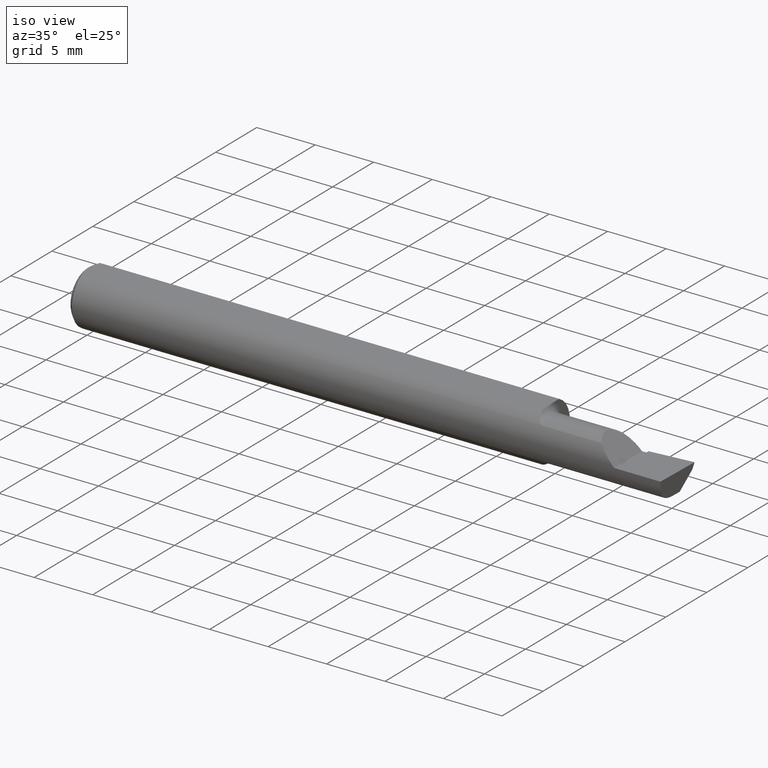
[diagram: clean part render]
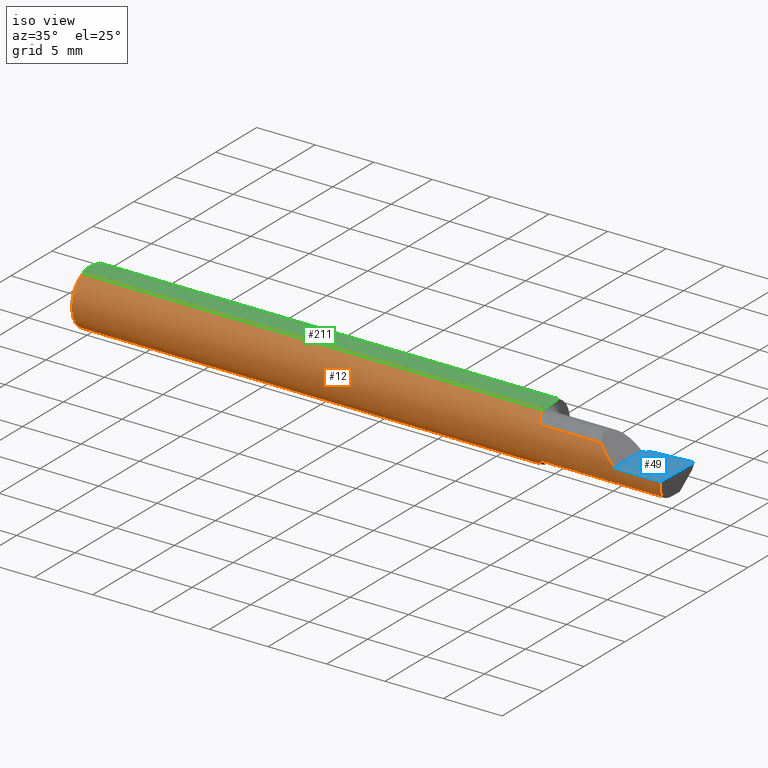
[diagram: same view with three faces highlighted in distinct colors, each labeled with its STEP entity id]
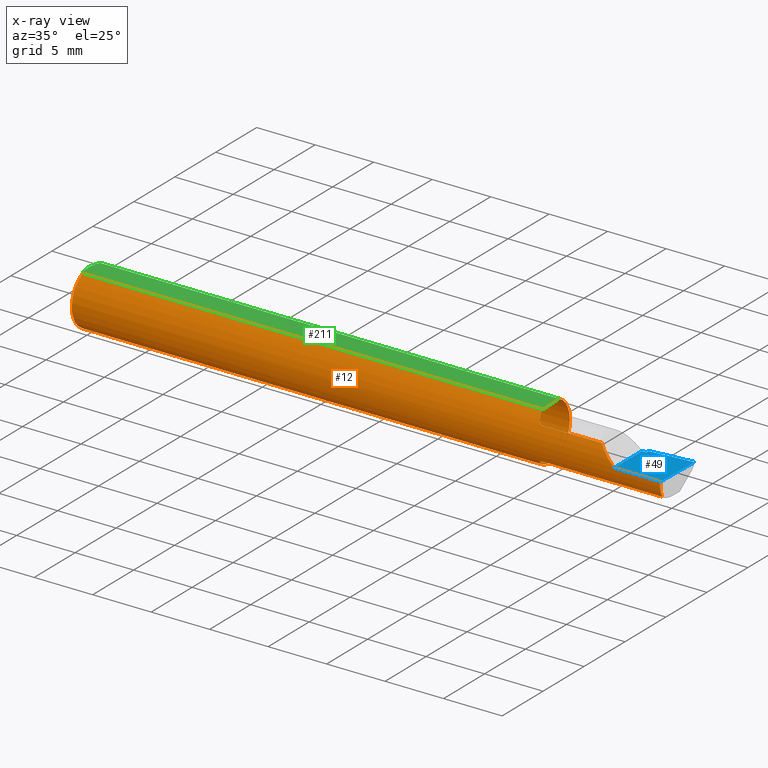
[diagram: x-ray of the same camera — body ghosted, the three highlighted faces saturated]
A machine part, iso view with three faces highlighted in distinct colors.
The next image is the same camera in x-ray (body ghosted, the three faces saturated) — at least one of them is partly hidden behind the body in this view.
Their STEP definitions:

[orange] entity #12 — the highlighted cylindrical surface (edge-blend (fillet) strip) has radius 2.3774 mm, axis along (-1, -0, -0).
#4 = VERTEX_POINT ( 'NONE', #325 ) ;
#5 = LINE ( 'NONE', #428, #269 ) ;
#6 = DIRECTION ( 'NONE',  ( -1.000000000000000000, -0.000000000000000000, -0.000000000000000000 ) ) ;
#12 = ADVANCED_FACE ( 'NONE', ( #523 ), #560, .T. ) ;
#26 = CARTESIAN_POINT ( 'NONE',  ( 1.577524991500365292, -0.07354719313698328265, 0.05791404302443246138 ) ) ;
#27 = VECTOR ( 'NONE', #6, 39.37007874015748143 ) ;
#30 = CARTESIAN_POINT ( 'NONE',  ( 1.572372878085588122, -0.06813570069660565554, -0.06426486695182659359 ) ) ;
#32 = EDGE_CURVE ( 'NONE', #598, #380, #322, .T. ) ;
#36 = VERTEX_POINT ( 'NONE', #202 ) ;
#42 = CARTESIAN_POINT ( 'NONE',  ( 1.995862624392068074, -0.09360000000000009979, -6.605666309584466665E-17 ) ) ;
#47 = CARTESIAN_POINT ( 'NONE',  ( 1.785481776797905207, -0.07608366013071832246, 0.05451822320209408906 ) ) ;
#52 = CARTESIAN_POINT ( 'NONE',  ( 1.560000000000000053, 0.000000000000000000, 0.000000000000000000 ) ) ;
#54 = ORIENTED_EDGE ( 'NONE', *, *, #414, .F. ) ;
#65 = EDGE_CURVE ( 'NONE', #401, #500, #538, .T. ) ;
#71 = CARTESIAN_POINT ( 'NONE',  ( 1.584999999999999964, -0.07608366013071794776, 0.05451822320209439438 ) ) ;
#75 = CIRCLE ( 'NONE', #168, 0.09360000000000001652 ) ;
#76 = CARTESIAN_POINT ( 'NONE',  ( 1.572718485147075684, -0.06880529263944749896, 0.06356579742164542024 ) ) ;
#79 = CARTESIAN_POINT ( 'NONE',  ( 0.000000000000000000, 0.000000000000000000, 0.000000000000000000 ) ) ;
#82 = ORIENTED_EDGE ( 'NONE', *, *, #583, .F. ) ;
#84 = VECTOR ( 'NONE', #590, 39.37007874015748143 ) ;
#92 = LINE ( 'NONE', #244, #84 ) ;
#93 = EDGE_CURVE ( 'NONE', #102, #619, #448, .T. ) ;
#96 = DIRECTION ( 'NONE',  ( 0.000000000000000000, 1.000000000000000000, 0.000000000000000000 ) ) ;
#102 = VERTEX_POINT ( 'NONE', #429 ) ;
#103 = CIRCLE ( 'NONE', #240, 0.09360000000000001652 ) ;
#106 = CARTESIAN_POINT ( 'NONE',  ( 5.659797890829555466E-31, -0.09359999999999998876, 1.030335658007946046E-15 ) ) ;
#110 = EDGE_LOOP ( 'NONE', ( #114, #122, #600, #82, #554, #420, #605, #245, #468, #288, #54, #411 ) ) ;
#114 = ORIENTED_EDGE ( 'NONE', *, *, #32, .F. ) ;
#119 = EDGE_CURVE ( 'NONE', #602, #612, #92, .T. ) ;
#122 = ORIENTED_EDGE ( 'NONE', *, *, #310, .T. ) ;
#129 = CARTESIAN_POINT ( 'NONE',  ( 1.566007506249286640, -0.05524264031795306923, -0.07589747771031254975 ) ) ;
#132 = DIRECTION ( 'NONE',  ( 0.000000000000000000, 0.000000000000000000, 1.000000000000000000 ) ) ;
#138 = DIRECTION ( 'NONE',  ( -1.000000000000000000, -0.000000000000000000, -0.000000000000000000 ) ) ;
#139 = CARTESIAN_POINT ( 'NONE',  ( 1.989625015145392917, -0.07608366013071821143, -0.05451822320209420702 ) ) ;
#165 = DIRECTION ( 'NONE',  ( -1.000000000000000000, -0.000000000000000000, -0.000000000000000000 ) ) ;
#168 = AXIS2_PLACEMENT_3D ( 'NONE', #284, #138, #581 ) ;
#175 = DIRECTION ( 'NONE',  ( -1.000000000000000000, -0.000000000000000000, -0.000000000000000000 ) ) ;
#178 = DIRECTION ( 'NONE',  ( -1.000000000000000000, -4.268512490100411279E-18, -0.000000000000000000 ) ) ;
#182 = CARTESIAN_POINT ( 'NONE',  ( 0.01499999999999999771, 0.000000000000000000, -0.09360000000000001652 ) ) ;
#183 = DIRECTION ( 'NONE',  ( -1.000000000000000000, -0.000000000000000000, -0.000000000000000000 ) ) ;
#196 = CARTESIAN_POINT ( 'NONE',  ( 1.991292915001084296, -0.08756847698997995144, -0.03849042825095487508 ) ) ;
#202 = CARTESIAN_POINT ( 'NONE',  ( 1.560000000000000053, -0.007864705882352510113, -0.09326900021649256467 ) ) ;
#219 = CARTESIAN_POINT ( 'NONE',  ( 1.581360941731893899, -0.07557034852506690215, -0.05524018594043181990 ) ) ;
#222 = CARTESIAN_POINT ( 'NONE',  ( 1.568052623108272314, -0.06089616178095298704, -0.07140423527607867027 ) ) ;
#224 = CARTESIAN_POINT ( 'NONE',  ( 1.580753778368558793, -0.07537148234687023052, 0.05551905660761868172 ) ) ;
#238 = DIRECTION ( 'NONE',  ( 1.000000000000000000, 4.268512490100411279E-18, 0.000000000000000000 ) ) ;
#240 = AXIS2_PLACEMENT_3D ( 'NONE', #348, #175, #513 ) ;
#241 = CARTESIAN_POINT ( 'NONE',  ( 1.995862624392068074, -0.09360000000000009979, -6.605666309584466665E-17 ) ) ;
#244 = CARTESIAN_POINT ( 'NONE',  ( 0.000000000000000000, 0.04209513035969837669, 0.08360000000000000764 ) ) ;
#245 = ORIENTED_EDGE ( 'NONE', *, *, #349, .F. ) ;
#266 = CARTESIAN_POINT ( 'NONE',  ( 1.561750924354898817, -0.03635445752162090594, -0.08656092162675024793 ) ) ;
#269 = VECTOR ( 'NONE', #238, 39.37007874015748143 ) ;
#270 = CARTESIAN_POINT ( 'NONE',  ( 1.989625015145392917, -0.07608366013071821143, -0.05451822320209420702 ) ) ;
#271 = VERTEX_POINT ( 'NONE', #396 ) ;
#284 = CARTESIAN_POINT ( 'NONE',  ( 0.01499999999999999771, 0.000000000000000000, 0.000000000000000000 ) ) ;
#288 = ORIENTED_EDGE ( 'NONE', *, *, #520, .F. ) ;
#290 = CARTESIAN_POINT ( 'NONE',  ( 0.01500000000000000291, -0.04209513035969835587, 0.08360000000000000764 ) ) ;
#310 = EDGE_CURVE ( 'NONE', #598, #102, #359, .T. ) ;
#313 = CARTESIAN_POINT ( 'NONE',  ( 1.719999999999999973, -0.07608366013071821143, -0.05451822320209420702 ) ) ;
#315 = CARTESIAN_POINT ( 'NONE',  ( 1.562861144841092953, -0.04209513036041401951, 0.08360000000000000764 ) ) ;
#320 = CARTESIAN_POINT ( 'NONE',  ( 1.566341906786436811, -0.05682123740528498973, 0.07483672126184987006 ) ) ;
#322 =( BOUNDED_CURVE ( )  B_SPLINE_CURVE ( 3, ( #42, #436, #196, #139 ),
 .UNSPECIFIED., .F., .T. ) 
 B_SPLINE_CURVE_WITH_KNOTS ( ( 4, 4 ),
 ( 4.922438424664829171, 5.544189768309971456 ),
 .UNSPECIFIED. ) 
 CURVE ( )  GEOMETRIC_REPRESENTATION_ITEM ( )  RATIONAL_B_SPLINE_CURVE ( ( 1.000000000000000000, 0.9680440490283178656, 0.9680440490283178656, 1.000000000000000000 ) ) 
 REPRESENTATION_ITEM ( '' )  );
#324 = CARTESIAN_POINT ( 'NONE',  ( 1.560327566746672501, -0.02246933888146956590, -0.09115683487700426690 ) ) ;
#325 = CARTESIAN_POINT ( 'NONE',  ( 1.584999999999999964, -0.07608366013071794776, 0.05451822320209439438 ) ) ;
#329 = VECTOR ( 'NONE', #165, 39.37007874015748143 ) ;
#342 = DIRECTION ( 'NONE',  ( 1.000000000000000000, 4.268512490100411279E-18, 0.000000000000000000 ) ) ;
#348 = CARTESIAN_POINT ( 'NONE',  ( 0.01499999999999999771, 0.000000000000000000, 0.000000000000000000 ) ) ;
#349 = EDGE_CURVE ( 'NONE', #602, #433, #103, .T. ) ;
#358 = EDGE_CURVE ( 'NONE', #380, #271, #370, .T. ) ;
#359 = LINE ( 'NONE', #106, #329 ) ;
#367 = CARTESIAN_POINT ( 'NONE',  ( 1.562861144841092953, -0.04209513036041401951, 0.08360000000000000764 ) ) ;
#370 = LINE ( 'NONE', #313, #584 ) ;
#380 = VERTEX_POINT ( 'NONE', #270 ) ;
#383 = CARTESIAN_POINT ( 'NONE',  ( 1.840000000000000080, -0.09360000000000005815, 1.959434878635762025E-17 ) ) ;
#389 = EDGE_CURVE ( 'NONE', #401, #4, #518, .T. ) ;
#395 = CARTESIAN_POINT ( 'NONE',  ( 1.785481776797905207, -0.07608366013071832246, 0.05451822320209408906 ) ) ;
#396 = CARTESIAN_POINT ( 'NONE',  ( 1.584999999999999964, -0.07608366013071804490, -0.05451822320209432499 ) ) ;
#401 = VERTEX_POINT ( 'NONE', #367 ) ;
#411 = ORIENTED_EDGE ( 'NONE', *, *, #358, .F. ) ;
#413 = AXIS2_PLACEMENT_3D ( 'NONE', #79, #183, #132 ) ;
#414 = EDGE_CURVE ( 'NONE', #271, #36, #453, .T. ) ;
#415 = CARTESIAN_POINT ( 'NONE',  ( 1.559999999999995612, -0.01523829271462590410, -0.09264723852076078847 ) ) ;
#420 = ORIENTED_EDGE ( 'NONE', *, *, #65, .T. ) ;
#421 = CARTESIAN_POINT ( 'NONE',  ( 1.584999999999999964, -0.07608366013071804490, -0.05451822320209432499 ) ) ;
#424 = CARTESIAN_POINT ( 'NONE',  ( 1.583103322019917103, -0.07608366013071797551, -0.05451822320209449846 ) ) ;
#428 = CARTESIAN_POINT ( 'NONE',  ( 1.719999999999999973, -0.07608366013071821143, 0.05451822320209420702 ) ) ;
#429 = CARTESIAN_POINT ( 'NONE',  ( 1.840000000000000080, -0.09360000000000005815, 1.959434878635762025E-17 ) ) ;
#432 = CARTESIAN_POINT ( 'NONE',  ( 0.000000000000000000, -0.04209513035969835587, 0.08360000000000000764 ) ) ;
#433 = VERTEX_POINT ( 'NONE', #182 ) ;
#434 = CARTESIAN_POINT ( 'NONE',  ( 0.01499999999999999771, 0.04209513035969837669, 0.08360000000000000764 ) ) ;
#436 = CARTESIAN_POINT ( 'NONE',  ( 1.993440754331651910, -0.09359999999999998876, -0.01971778966533910271 ) ) ;
#441 = AXIS2_PLACEMENT_3D ( 'NONE', #52, #342, #96 ) ;
#448 =( BOUNDED_CURVE ( )  B_SPLINE_CURVE ( 3, ( #383, #575, #582, #47 ),
 .UNSPECIFIED., .F., .T. ) 
 B_SPLINE_CURVE_WITH_KNOTS ( ( 4, 4 ),
 ( 4.712388980384689674, 5.334140324029830182 ),
 .UNSPECIFIED. ) 
 CURVE ( )  GEOMETRIC_REPRESENTATION_ITEM ( )  RATIONAL_B_SPLINE_CURVE ( ( 1.000000000000000000, 0.9680440490283178656, 0.9680440490283178656, 1.000000000000000000 ) ) 
 REPRESENTATION_ITEM ( '' )  );
#453 = B_SPLINE_CURVE_WITH_KNOTS ( 'NONE', 3,
 ( #421, #424, #219, #604, #477, #616, #30, #222, #129, #611, #266, #324, #415, #606 ),
 .UNSPECIFIED., .F., .F.,
 ( 4, 2, 2, 2, 2, 2, 4 ),
 ( 1.959461805732903391E-07, 0.0001418114856513866067, 0.0002834270251221998886, 0.0005666581040638388666, 0.001133120261947115955, 0.001699582419830393152, 0.002266044577713670349 ),
 .UNSPECIFIED. ) ;
#460 = CARTESIAN_POINT ( 'NONE',  ( 1.576209588651319882, -0.07242362088648852947, 0.05932313091832396024 ) ) ;
#468 = ORIENTED_EDGE ( 'NONE', *, *, #119, .T. ) ;
#477 = CARTESIAN_POINT ( 'NONE',  ( 1.577249994923977328, -0.07326991650738465256, -0.05826485454810950010 ) ) ;
#484 = CIRCLE ( 'NONE', #441, 0.09360000000000001652 ) ;
#500 = VERTEX_POINT ( 'NONE', #290 ) ;
#511 = CARTESIAN_POINT ( 'NONE',  ( 1.570942860874689373, -0.06599234460544585457, 0.06650584501266768034 ) ) ;
#513 = DIRECTION ( 'NONE',  ( 0.000000000000000000, 0.000000000000000000, 1.000000000000000000 ) ) ;
#517 = CARTESIAN_POINT ( 'NONE',  ( 1.582761054724242777, -0.07608366013204299894, 0.05451822320024558854 ) ) ;
#518 = B_SPLINE_CURVE_WITH_KNOTS ( 'NONE', 3,
 ( #315, #565, #320, #511, #76, #460, #26, #224, #517, #71 ),
 .UNSPECIFIED., .F., .F.,
 ( 4, 2, 2, 2, 4 ),
 ( 4.459497343008270674E-07, 0.0006638717458672090468, 0.0009955846439336669008, 0.001161441092966890081, 0.001327297542000113479 ),
 .UNSPECIFIED. ) ;
#520 = EDGE_CURVE ( 'NONE', #36, #612, #484, .T. ) ;
#523 = FACE_OUTER_BOUND ( 'NONE', #110, .T. ) ;
#525 = EDGE_CURVE ( 'NONE', #433, #500, #75, .T. ) ;
#538 = LINE ( 'NONE', #432, #27 ) ;
#554 = ORIENTED_EDGE ( 'NONE', *, *, #389, .F. ) ;
#560 = CYLINDRICAL_SURFACE ( 'NONE', #413, 0.09360000000000001652 ) ;
#565 = CARTESIAN_POINT ( 'NONE',  ( 1.564336437763706344, -0.04985092026457540321, 0.07969472503477174896 ) ) ;
#575 = CARTESIAN_POINT ( 'NONE',  ( 1.820282210334661199, -0.09360000000000003040, 0.01971778966533898128 ) ) ;
#581 = DIRECTION ( 'NONE',  ( 0.000000000000000000, 0.000000000000000000, 1.000000000000000000 ) ) ;
#582 = CARTESIAN_POINT ( 'NONE',  ( 1.801509571749044802, -0.08756847698998002083, 0.03849042825095470161 ) ) ;
#583 = EDGE_CURVE ( 'NONE', #4, #619, #5, .T. ) ;
#584 = VECTOR ( 'NONE', #178, 39.37007874015748143 ) ;
#586 = CARTESIAN_POINT ( 'NONE',  ( 1.560000000000000053, 0.04209513035969836975, 0.08360000000000000764 ) ) ;
#590 = DIRECTION ( 'NONE',  ( 1.000000000000000000, 0.000000000000000000, 0.000000000000000000 ) ) ;
#598 = VERTEX_POINT ( 'NONE', #241 ) ;
#600 = ORIENTED_EDGE ( 'NONE', *, *, #93, .T. ) ;
#602 = VERTEX_POINT ( 'NONE', #434 ) ;
#604 = CARTESIAN_POINT ( 'NONE',  ( 1.578446742734843422, -0.07415202900322749591, -0.05712995986028755746 ) ) ;
#605 = ORIENTED_EDGE ( 'NONE', *, *, #525, .F. ) ;
#606 = CARTESIAN_POINT ( 'NONE',  ( 1.560000000000000053, -0.007864705882352510113, -0.09326900021649256467 ) ) ;
#611 = CARTESIAN_POINT ( 'NONE',  ( 1.562858269845931236, -0.04306185800455376855, -0.08341374477435820056 ) ) ;
#612 = VERTEX_POINT ( 'NONE', #586 ) ;
#616 = CARTESIAN_POINT ( 'NONE',  ( 1.574014441612383575, -0.07037190759423131436, -0.06179005084634896922 ) ) ;
#619 = VERTEX_POINT ( 'NONE', #395 ) ;

[blue] entity #49 — the highlighted planar face has unit normal (-0, 0, -1).
#11 = CARTESIAN_POINT ( 'NONE',  ( 1.840000000000000080, 0.04039999999999989433, 1.959434878635762025E-17 ) ) ;
#19 = CARTESIAN_POINT ( 'NONE',  ( 1.991772787678609324, -0.2497845628634190740, -6.377686106282058433E-17 ) ) ;
#21 = CARTESIAN_POINT ( 'NONE',  ( 1.854999999999999982, 0.05043808801135910014, 1.028711510114199084E-15 ) ) ;
#24 = DIRECTION ( 'NONE',  ( 0.9953961983671787417, 0.09584575252022466130, -5.467869873542577569E-16 ) ) ;
#49 = ADVANCED_FACE ( 'NONE', ( #442 ), #190, .F. ) ;
#55 = VECTOR ( 'NONE', #24, 39.37007874015748143 ) ;
#59 = CARTESIAN_POINT ( 'NONE',  ( 2.000000000000004441, 0.06440000000001341873, 4.273634705088531894E-14 ) ) ;
#67 = ORIENTED_EDGE ( 'NONE', *, *, #275, .F. ) ;
#68 = LINE ( 'NONE', #457, #55 ) ;
#70 = VERTEX_POINT ( 'NONE', #11 ) ;
#86 = CARTESIAN_POINT ( 'NONE',  ( 2.000000000000000000, -0.2500000000000000555, -6.829619984160658046E-17 ) ) ;
#102 = VERTEX_POINT ( 'NONE', #429 ) ;
#106 = CARTESIAN_POINT ( 'NONE',  ( 5.659797890829555466E-31, -0.09359999999999998876, 1.030335658007946046E-15 ) ) ;
#121 = LINE ( 'NONE', #567, #462 ) ;
#126 = AXIS2_PLACEMENT_3D ( 'NONE', #86, #394, #143 ) ;
#131 = DIRECTION ( 'NONE',  ( -4.268512490100411279E-18, 1.000000000000000000, 2.344761903626518103E-33 ) ) ;
#143 = DIRECTION ( 'NONE',  ( -1.000000000000000000, 0.000000000000000000, 5.493159289247764363E-16 ) ) ;
#154 = CARTESIAN_POINT ( 'NONE',  ( -3.030643867965640675E-19, 0.04039999999999995678, 1.030335658007946046E-15 ) ) ;
#165 = DIRECTION ( 'NONE',  ( -1.000000000000000000, -0.000000000000000000, -0.000000000000000000 ) ) ;
#186 = EDGE_LOOP ( 'NONE', ( #593, #508, #406, #408, #67, #314 ) ) ;
#190 = PLANE ( 'NONE',  #126 ) ;
#210 = DIRECTION ( 'NONE',  ( -0.02617694830786939167, -0.9996573249755573709, 1.459184416195897376E-17 ) ) ;
#212 = VERTEX_POINT ( 'NONE', #59 ) ;
#214 = CARTESIAN_POINT ( 'NONE',  ( 1.840000000000000080, -0.2500000000000000555, 1.959434878635762025E-17 ) ) ;
#220 = VERTEX_POINT ( 'NONE', #21 ) ;
#237 = EDGE_CURVE ( 'NONE', #212, #598, #250, .T. ) ;
#241 = CARTESIAN_POINT ( 'NONE',  ( 1.995862624392068074, -0.09360000000000009979, -6.605666309584466665E-17 ) ) ;
#243 = CARTESIAN_POINT ( 'NONE',  ( 1.854999999999999982, 0.04039999999999999841, 1.030335658007946440E-15 ) ) ;
#250 = LINE ( 'NONE', #19, #362 ) ;
#257 = EDGE_CURVE ( 'NONE', #70, #577, #356, .T. ) ;
#275 = EDGE_CURVE ( 'NONE', #102, #70, #553, .T. ) ;
#310 = EDGE_CURVE ( 'NONE', #598, #102, #359, .T. ) ;
#314 = ORIENTED_EDGE ( 'NONE', *, *, #310, .F. ) ;
#323 = EDGE_CURVE ( 'NONE', #220, #212, #68, .T. ) ;
#329 = VECTOR ( 'NONE', #165, 39.37007874015748143 ) ;
#345 = DIRECTION ( 'NONE',  ( 1.000000000000000000, 4.268512490100411279E-18, 0.000000000000000000 ) ) ;
#356 = LINE ( 'NONE', #154, #497 ) ;
#359 = LINE ( 'NONE', #106, #329 ) ;
#362 = VECTOR ( 'NONE', #210, 39.37007874015748143 ) ;
#386 = EDGE_CURVE ( 'NONE', #577, #220, #121, .T. ) ;
#394 = DIRECTION ( 'NONE',  ( -5.493159289247764363E-16, 0.000000000000000000, -1.000000000000000000 ) ) ;
#406 = ORIENTED_EDGE ( 'NONE', *, *, #386, .F. ) ;
#408 = ORIENTED_EDGE ( 'NONE', *, *, #257, .F. ) ;
#429 = CARTESIAN_POINT ( 'NONE',  ( 1.840000000000000080, -0.09360000000000005815, 1.959434878635762025E-17 ) ) ;
#442 = FACE_OUTER_BOUND ( 'NONE', #186, .T. ) ;
#445 = DIRECTION ( 'NONE',  ( -0.000000000000000000, 1.000000000000000000, -0.000000000000000000 ) ) ;
#457 = CARTESIAN_POINT ( 'NONE',  ( 1.013387277386880392, -0.03060000000000022771, 4.736658843696217583E-16 ) ) ;
#462 = VECTOR ( 'NONE', #131, 39.37007874015748143 ) ;
#497 = VECTOR ( 'NONE', #345, 39.37007874015748143 ) ;
#508 = ORIENTED_EDGE ( 'NONE', *, *, #323, .F. ) ;
#553 = LINE ( 'NONE', #214, #572 ) ;
#567 = CARTESIAN_POINT ( 'NONE',  ( 1.854999999999999982, -0.2500000000000000555, 1.135460985248596835E-17 ) ) ;
#572 = VECTOR ( 'NONE', #445, 39.37007874015748143 ) ;
#577 = VERTEX_POINT ( 'NONE', #243 ) ;
#593 = ORIENTED_EDGE ( 'NONE', *, *, #237, .F. ) ;
#598 = VERTEX_POINT ( 'NONE', #241 ) ;

[green] entity #211 — the highlighted planar face has unit normal (0, -0, -1).
#6 = DIRECTION ( 'NONE',  ( -1.000000000000000000, -0.000000000000000000, -0.000000000000000000 ) ) ;
#17 = CARTESIAN_POINT ( 'NONE',  ( 0.005975039161239527503, -0.01453776427033146371, 0.08359999999999996600 ) ) ;
#27 = VECTOR ( 'NONE', #6, 39.37007874015748143 ) ;
#33 = CARTESIAN_POINT ( 'NONE',  ( 1.562798152027436771, -0.01771129213186550116, 0.08360000000000003539 ) ) ;
#35 = CARTESIAN_POINT ( 'NONE',  ( 1.559999999999999165, 0.006742283091807301301, 0.08360000000000003539 ) ) ;
#43 = CARTESIAN_POINT ( 'NONE',  ( 1.560000000000000053, 0.01659152466280376659, 0.08360000000000000764 ) ) ;
#56 = CARTESIAN_POINT ( 'NONE',  ( 0.009539353699420834165, -0.02875682547511369813, 0.08360000000000003539 ) ) ;
#65 = EDGE_CURVE ( 'NONE', #401, #500, #538, .T. ) ;
#81 = CARTESIAN_POINT ( 'NONE',  ( 1.563154437539956199, -0.02258334521707493561, 0.08360000000000000764 ) ) ;
#84 = VECTOR ( 'NONE', #590, 39.37007874015748143 ) ;
#92 = LINE ( 'NONE', #244, #84 ) ;
#94 = CARTESIAN_POINT ( 'NONE',  ( 0.005000000000000237761, 1.025183009042025117E-17, 0.08360000000000000764 ) ) ;
#101 = DIRECTION ( 'NONE',  ( 0.000000000000000000, -1.189000693621284344E-16, -1.000000000000000000 ) ) ;
#119 = EDGE_CURVE ( 'NONE', #602, #612, #92, .T. ) ;
#125 = CARTESIAN_POINT ( 'NONE',  ( 1.563209978243261578, -0.03721340473516416419, 0.08360000000000000764 ) ) ;
#147 = CARTESIAN_POINT ( 'NONE',  ( 0.005000000000000237761, 1.025183009042025117E-17, 0.08360000000000000764 ) ) ;
#157 = CARTESIAN_POINT ( 'NONE',  ( 0.005000000000000228220, -0.007328888879231051229, 0.08359999999999999376 ) ) ;
#163 = EDGE_CURVE ( 'NONE', #471, #602, #576, .T. ) ;
#211 = ADVANCED_FACE ( 'NONE', ( #304 ), #592, .F. ) ;
#215 = ORIENTED_EDGE ( 'NONE', *, *, #65, .F. ) ;
#228 = CARTESIAN_POINT ( 'NONE',  ( 1.562861144841092953, -0.04209513036041401951, 0.08360000000000000764 ) ) ;
#233 = ORIENTED_EDGE ( 'NONE', *, *, #234, .F. ) ;
#234 = EDGE_CURVE ( 'NONE', #500, #471, #479, .T. ) ;
#244 = CARTESIAN_POINT ( 'NONE',  ( 0.000000000000000000, 0.04209513035969837669, 0.08360000000000000764 ) ) ;
#261 = DIRECTION ( 'NONE',  ( 0.000000000000000000, 1.000000000000000000, -1.189000693621284344E-16 ) ) ;
#276 = CARTESIAN_POINT ( 'NONE',  ( 1.563362255574652693, -0.03233437538769841357, 0.08360000000000003539 ) ) ;
#290 = CARTESIAN_POINT ( 'NONE',  ( 0.01500000000000000291, -0.04209513035969835587, 0.08360000000000000764 ) ) ;
#293 = EDGE_CURVE ( 'NONE', #612, #493, #447, .T. ) ;
#304 = FACE_OUTER_BOUND ( 'NONE', #588, .T. ) ;
#316 = B_SPLINE_CURVE_WITH_KNOTS ( 'NONE', 3,
 ( #374, #35, #561, #33, #81, #276, #125, #228 ),
 .UNSPECIFIED., .F., .F.,
 ( 4, 2, 2, 4 ),
 ( 0.009574067517472108907, 0.01031724332539393600, 0.01068883122935485042, 0.01106041913331576310 ),
 .UNSPECIFIED. ) ;
#336 = CARTESIAN_POINT ( 'NONE',  ( 0.01203648650249650870, 0.03550565407121124978, 0.08360000000000000764 ) ) ;
#360 = ORIENTED_EDGE ( 'NONE', *, *, #119, .F. ) ;
#363 = EDGE_CURVE ( 'NONE', #493, #401, #316, .T. ) ;
#367 = CARTESIAN_POINT ( 'NONE',  ( 1.562861144841092953, -0.04209513036041401951, 0.08360000000000000764 ) ) ;
#374 = CARTESIAN_POINT ( 'NONE',  ( 1.560000000000000053, 0.01659152466280376659, 0.08360000000000000764 ) ) ;
#375 = ORIENTED_EDGE ( 'NONE', *, *, #363, .F. ) ;
#382 = AXIS2_PLACEMENT_3D ( 'NONE', #404, #101, #261 ) ;
#385 = CARTESIAN_POINT ( 'NONE',  ( 0.005981829149300847866, 0.01454044632356568667, 0.08360000000000000764 ) ) ;
#388 = CARTESIAN_POINT ( 'NONE',  ( 0.005000000000000227353, 0.007308422719211826561, 0.08360000000000000764 ) ) ;
#401 = VERTEX_POINT ( 'NONE', #367 ) ;
#404 = CARTESIAN_POINT ( 'NONE',  ( 2.000000000000000000, 0.1436000000000000332, 0.08359999999999999376 ) ) ;
#410 = CARTESIAN_POINT ( 'NONE',  ( 0.005000000000000237761, 1.025183009042025117E-17, 0.08360000000000000764 ) ) ;
#432 = CARTESIAN_POINT ( 'NONE',  ( 0.000000000000000000, -0.04209513035969835587, 0.08360000000000000764 ) ) ;
#434 = CARTESIAN_POINT ( 'NONE',  ( 0.01499999999999999771, 0.04209513035969837669, 0.08360000000000000764 ) ) ;
#447 = LINE ( 'NONE', #542, #595 ) ;
#449 = ORIENTED_EDGE ( 'NONE', *, *, #163, .F. ) ;
#451 = CARTESIAN_POINT ( 'NONE',  ( 0.01206089165507027647, -0.03555991978469315307, 0.08360000000000003539 ) ) ;
#471 = VERTEX_POINT ( 'NONE', #94 ) ;
#479 = B_SPLINE_CURVE_WITH_KNOTS ( 'NONE', 3,
 ( #599, #451, #56, #17, #157, #410 ),
 .UNSPECIFIED., .F., .F.,
 ( 4, 2, 4 ),
 ( 0.005785415439423114564, 0.006333348270144337384, 0.006881281100865561072 ),
 .UNSPECIFIED. ) ;
#493 = VERTEX_POINT ( 'NONE', #43 ) ;
#500 = VERTEX_POINT ( 'NONE', #290 ) ;
#536 = CARTESIAN_POINT ( 'NONE',  ( 0.01499999999999999771, 0.04209513035969837669, 0.08360000000000000764 ) ) ;
#538 = LINE ( 'NONE', #432, #27 ) ;
#542 = CARTESIAN_POINT ( 'NONE',  ( 1.560000000000000053, 0.1436000000000000332, 0.08359999999999999376 ) ) ;
#561 = CARTESIAN_POINT ( 'NONE',  ( 1.561387404401340495, -0.003099822801829250039, 0.08359999999999999376 ) ) ;
#576 = B_SPLINE_CURVE_WITH_KNOTS ( 'NONE', 3,
 ( #147, #388, #385, #579, #336, #536 ),
 .UNSPECIFIED., .F., .F.,
 ( 4, 2, 4 ),
 ( 0.006881281100865561072, 0.007427683811376461706, 0.007974086521887361473 ),
 .UNSPECIFIED. ) ;
#579 = CARTESIAN_POINT ( 'NONE',  ( 0.009492654797564340635, 0.02859466010166628394, 0.08359999999999997988 ) ) ;
#580 = ORIENTED_EDGE ( 'NONE', *, *, #293, .F. ) ;
#586 = CARTESIAN_POINT ( 'NONE',  ( 1.560000000000000053, 0.04209513035969836975, 0.08360000000000000764 ) ) ;
#588 = EDGE_LOOP ( 'NONE', ( #375, #580, #360, #449, #233, #215 ) ) ;
#590 = DIRECTION ( 'NONE',  ( 1.000000000000000000, 0.000000000000000000, 0.000000000000000000 ) ) ;
#592 = PLANE ( 'NONE',  #382 ) ;
#595 = VECTOR ( 'NONE', #601, 39.37007874015748143 ) ;
#599 = CARTESIAN_POINT ( 'NONE',  ( 0.01500000000000000291, -0.04209513035969835587, 0.08360000000000000764 ) ) ;
#601 = DIRECTION ( 'NONE',  ( 4.268512490100411279E-18, -1.000000000000000000, 1.189000693621284344E-16 ) ) ;
#602 = VERTEX_POINT ( 'NONE', #434 ) ;
#612 = VERTEX_POINT ( 'NONE', #586 ) ;